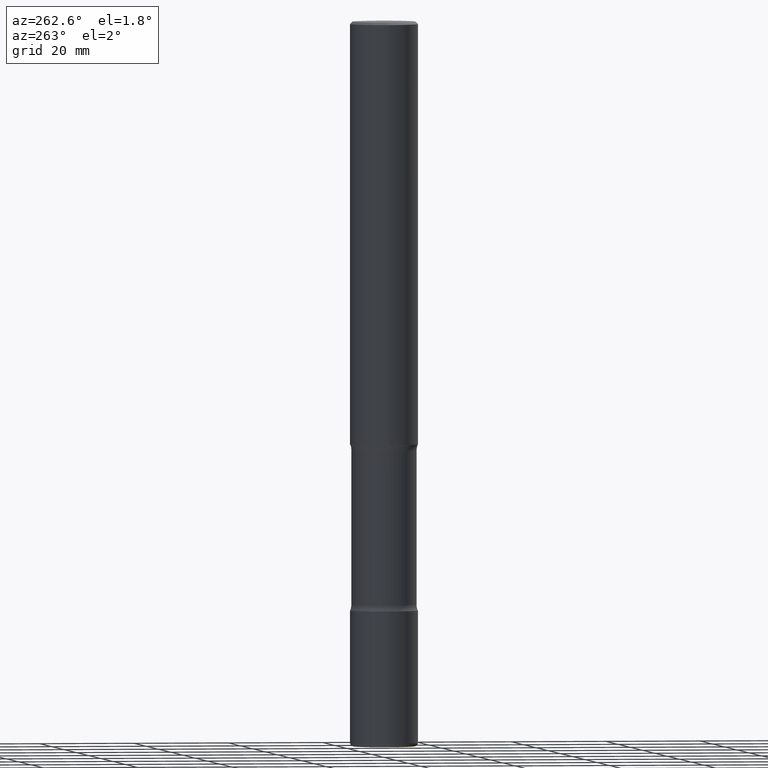
[diagram: clean part render]
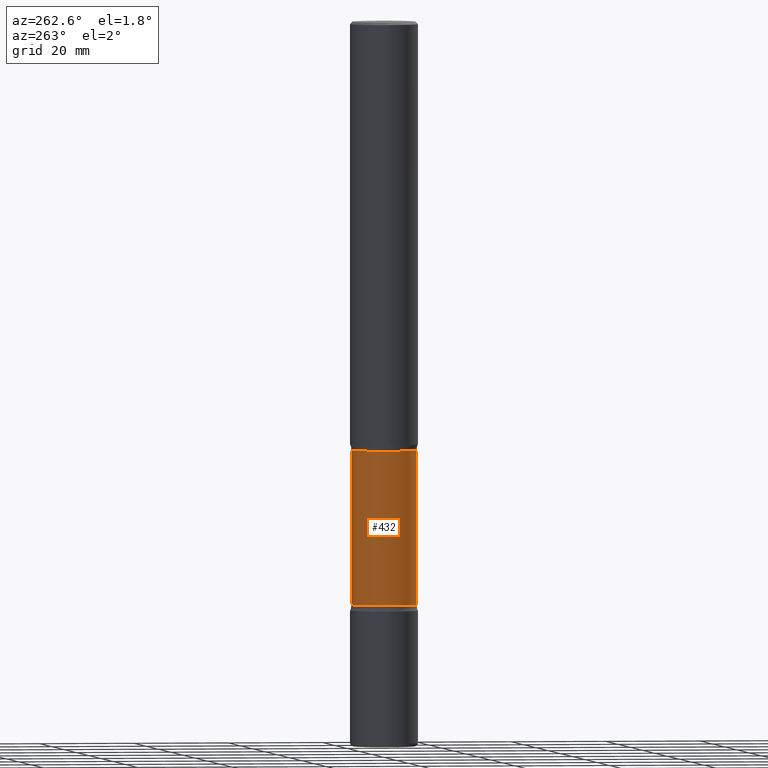
[diagram: same view with one face highlighted and labeled with its STEP entity id]
A machine part, auxiliary view. The second image highlights one B-rep face of the part: STEP entity #432.
In plain terms, the highlighted cylindrical surface (edge-blend (fillet) strip) has radius 6.8961 mm, axis along (0, -0, -1).
Its self-contained STEP definition (entity closure, byte-faithful):
#1 = LINE ( 'NONE', #132, #150 ) ;
#18 = CARTESIAN_POINT ( 'NONE',  ( 1.895874366991938652E-15, 0.2714999999999830882, -4.826601265512413086 ) ) ;
#29 = VERTEX_POINT ( 'NONE', #411 ) ;
#45 = AXIS2_PLACEMENT_3D ( 'NONE', #191, #315, #236 ) ;
#53 = DIRECTION ( 'NONE',  ( 6.982962677686266711E-15, 1.000000000000000000, -4.024822090113095251E-15 ) ) ;
#90 = EDGE_LOOP ( 'NONE', ( #477, #378, #444, #490 ) ) ;
#91 = LINE ( 'NONE', #424, #393 ) ;
#109 = CYLINDRICAL_SURFACE ( 'NONE', #45, 0.2715000000000000191 ) ;
#132 = CARTESIAN_POINT ( 'NONE',  ( 1.895874366991969024E-15, 0.2714999999999791469, -6.000000000000001776 ) ) ;
#150 = VECTOR ( 'NONE', #171, 39.37007874015748143 ) ;
#171 = DIRECTION ( 'NONE',  ( 2.529525800553503552E-29, -3.371106938680637457E-15, -1.000000000000000000 ) ) ;
#191 = CARTESIAN_POINT ( 'NONE',  ( 1.476737695577523311E-28, -2.081346683287605506E-14, -6.000000000000000888 ) ) ;
#195 = EDGE_CURVE ( 'NONE', #29, #537, #91, .T. ) ;
#202 = EDGE_CURVE ( 'NONE', #334, #514, #1, .T. ) ;
#236 = DIRECTION ( 'NONE',  ( 6.982962677686265133E-15, 1.000000000000000000, -4.024822090113094462E-15 ) ) ;
#315 = DIRECTION ( 'NONE',  ( 2.529525800553503552E-29, -3.371106938680637457E-15, -1.000000000000000000 ) ) ;
#334 = VERTEX_POINT ( 'NONE', #347 ) ;
#347 = CARTESIAN_POINT ( 'NONE',  ( 1.895874366991907098E-15, 0.2714999999999874736, -3.548398734487590467 ) ) ;
#354 = DIRECTION ( 'NONE',  ( 2.529525800553503552E-29, -3.371106938680637457E-15, -1.000000000000000000 ) ) ;
#378 = ORIENTED_EDGE ( 'NONE', *, *, #442, .T. ) ;
#381 = EDGE_CURVE ( 'NONE', #537, #514, #391, .T. ) ;
#383 = AXIS2_PLACEMENT_3D ( 'NONE', #436, #354, #480 ) ;
#389 = DIRECTION ( 'NONE',  ( 2.529525800553503552E-29, -3.371106938680637457E-15, -1.000000000000000000 ) ) ;
#391 = CIRCLE ( 'NONE', #539, 0.2714999999999999636 ) ;
#392 = FACE_OUTER_BOUND ( 'NONE', #90, .T. ) ;
#393 = VECTOR ( 'NONE', #389, 39.37007874015748143 ) ;
#401 = CARTESIAN_POINT ( 'NONE',  ( 1.179923458255204953E-28, -1.685781421720586347E-14, -4.826601265512412198 ) ) ;
#411 = CARTESIAN_POINT ( 'NONE',  ( -1.896070134134024035E-15, -0.2715000000000126201, -3.548398734487588246 ) ) ;
#424 = CARTESIAN_POINT ( 'NONE',  ( -1.862625206394822961E-15, -0.2715000000000208358, -5.999999999999999112 ) ) ;
#432 = ADVANCED_FACE ( 'NONE', ( #392 ), #109, .T. ) ;
#436 = CARTESIAN_POINT ( 'NONE',  ( 8.565988301991969532E-29, -1.254885679582893261E-14, -3.548398734487589135 ) ) ;
#442 = EDGE_CURVE ( 'NONE', #29, #334, #513, .T. ) ;
#444 = ORIENTED_EDGE ( 'NONE', *, *, #202, .T. ) ;
#477 = ORIENTED_EDGE ( 'NONE', *, *, #195, .F. ) ;
#480 = DIRECTION ( 'NONE',  ( 6.982962677686266711E-15, 1.000000000000000000, -4.024822090113094462E-15 ) ) ;
#490 = ORIENTED_EDGE ( 'NONE', *, *, #381, .F. ) ;
#513 = CIRCLE ( 'NONE', #383, 0.2715000000000000191 ) ;
#514 = VERTEX_POINT ( 'NONE', #18 ) ;
#532 = DIRECTION ( 'NONE',  ( 2.529525800553503552E-29, -3.371106938680637457E-15, -1.000000000000000000 ) ) ;
#537 = VERTEX_POINT ( 'NONE', #545 ) ;
#539 = AXIS2_PLACEMENT_3D ( 'NONE', #401, #532, #53 ) ;
#545 = CARTESIAN_POINT ( 'NONE',  ( -1.896070134133989325E-15, -0.2715000000000168390, -4.826601265512411310 ) ) ;